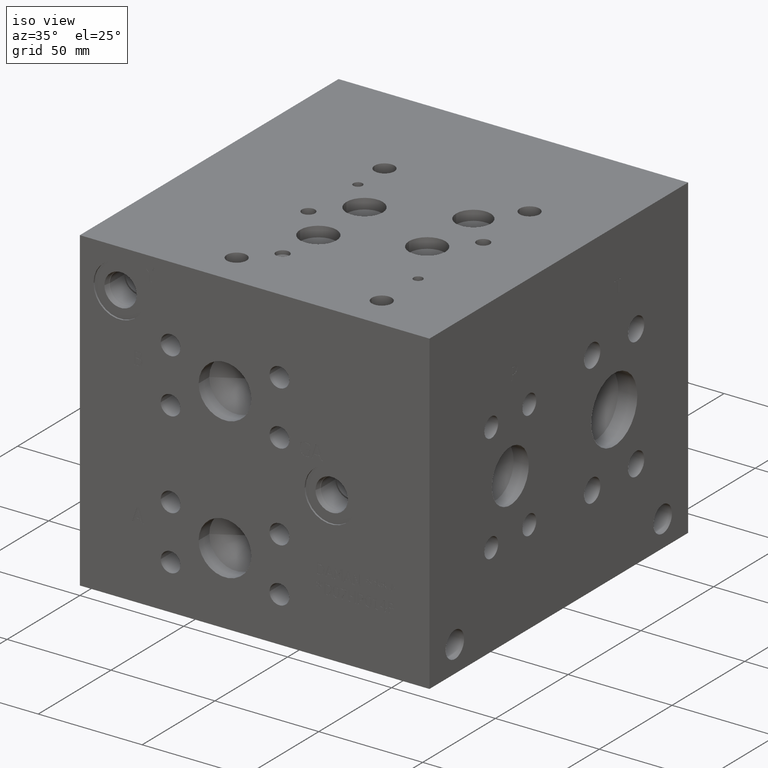
[diagram: clean part render]
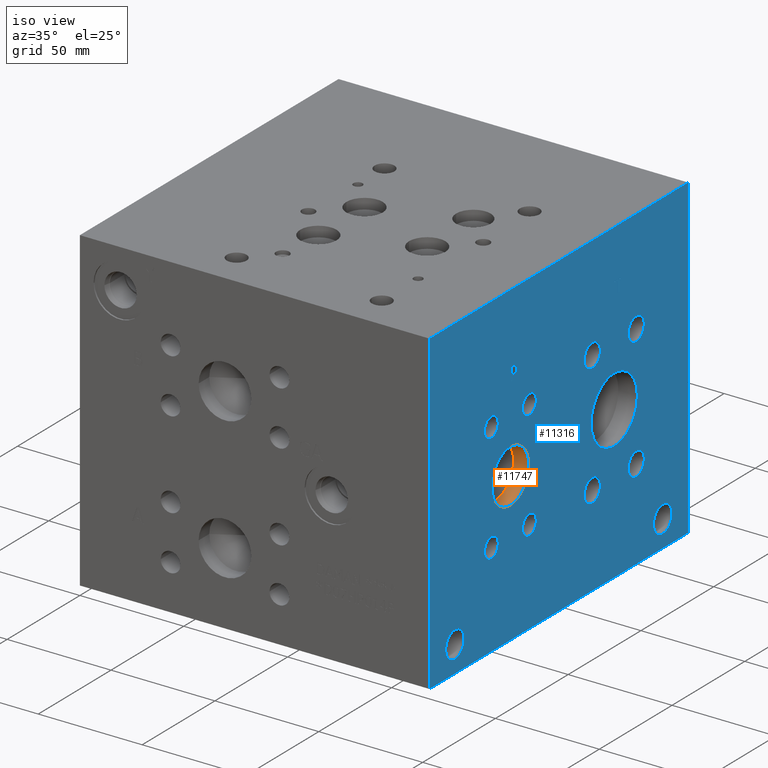
[diagram: same view with the hole feature highlighted: cylindrical wall and planar end face, labeled with their STEP entity ids]
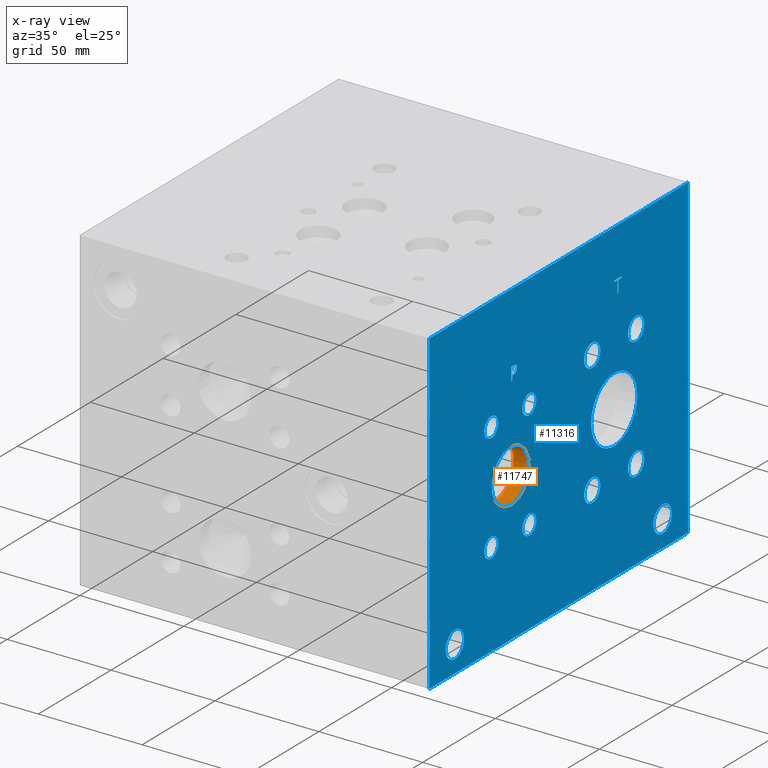
[diagram: x-ray of the same camera — body ghosted, the hole faces saturated]
A machine part, iso view. The highlighted faces form one hole feature of diameter 25.4 mm: the cylindrical wall (entity #11747, orange) and its adjacent planar end face (entity #11316, blue) — they share a circular edge in the B-rep.
The next image is the same camera in x-ray (body ghosted, the hole faces saturated) — the bore reads through the body.
Wall:
#26=CYLINDRICAL_SURFACE('',#12385,12.7);
#170=CIRCLE('',#11946,12.7);
#171=CIRCLE('',#11947,12.7);
#262=CIRCLE('',#12383,12.7);
#263=CIRCLE('',#12384,12.7);
#1439=FACE_OUTER_BOUND('',#2136,.T.);
#2136=EDGE_LOOP('',(#9999,#10000,#10001,#10002,#10003,#10004));
#3332=LINE('',#19403,#4447);
#4447=VECTOR('',#14682,12.7);
#4808=VERTEX_POINT('',#15818);
#4809=VERTEX_POINT('',#15819);
#5640=VERTEX_POINT('',#19396);
#5641=VERTEX_POINT('',#19397);
#5971=EDGE_CURVE('',#4808,#4809,#170,.T.);
#5972=EDGE_CURVE('',#4809,#4808,#171,.T.);
#7182=EDGE_CURVE('',#5640,#5641,#262,.T.);
#7184=EDGE_CURVE('',#5641,#5640,#263,.T.);
#7185=EDGE_CURVE('',#4809,#5641,#3332,.T.);
#9999=ORIENTED_EDGE('',*,*,#5971,.F.);
#10000=ORIENTED_EDGE('',*,*,#5972,.F.);
#10001=ORIENTED_EDGE('',*,*,#7185,.T.);
#10002=ORIENTED_EDGE('',*,*,#7182,.F.);
#10003=ORIENTED_EDGE('',*,*,#7184,.F.);
#10004=ORIENTED_EDGE('',*,*,#7185,.F.);
#11747=ADVANCED_FACE('',(#1439),#26,.F.);
#11946=AXIS2_PLACEMENT_3D('',#15820,#12852,#12853);
#11947=AXIS2_PLACEMENT_3D('',#15821,#12854,#12855);
#12383=AXIS2_PLACEMENT_3D('',#19398,#14675,#14676);
#12384=AXIS2_PLACEMENT_3D('',#19401,#14678,#14679);
#12385=AXIS2_PLACEMENT_3D('',#19402,#14680,#14681);
#12852=DIRECTION('center_axis',(-1.,0.,0.));
#12853=DIRECTION('ref_axis',(0.,1.,0.));
#12854=DIRECTION('center_axis',(-1.,0.,0.));
#12855=DIRECTION('ref_axis',(0.,1.,0.));
#14675=DIRECTION('center_axis',(1.,0.,0.));
#14676=DIRECTION('ref_axis',(0.,1.,0.));
#14678=DIRECTION('center_axis',(1.,0.,0.));
#14679=DIRECTION('ref_axis',(0.,1.,0.));
#14680=DIRECTION('center_axis',(1.,0.,0.));
#14681=DIRECTION('ref_axis',(0.,1.,0.));
#14682=DIRECTION('',(-1.,0.,0.));
#15818=CARTESIAN_POINT('',(168.275,68.2752,71.4248));
#15819=CARTESIAN_POINT('',(168.275,42.8752,71.4248));
#15820=CARTESIAN_POINT('Origin',(168.275,55.5752,71.4248));
#15821=CARTESIAN_POINT('Origin',(168.275,55.5752,71.4248));
#19396=CARTESIAN_POINT('',(160.94265,68.2752,71.4248));
#19397=CARTESIAN_POINT('',(160.94265,42.8752,71.4248));
#19398=CARTESIAN_POINT('Origin',(160.94265,55.5752,71.4248));
#19401=CARTESIAN_POINT('Origin',(160.94265,55.5752,71.4248));
#19402=CARTESIAN_POINT('Origin',(164.608825,55.5752,71.4248));
#19403=CARTESIAN_POINT('',(164.608825,42.8752,71.4248));
End face:
#160=CIRCLE('',#11936,15.875);
#161=CIRCLE('',#11937,15.875);
#162=CIRCLE('',#11938,5.5626);
#163=CIRCLE('',#11939,5.5626);
#164=CIRCLE('',#11940,5.5626);
#165=CIRCLE('',#11941,5.5626);
#166=CIRCLE('',#11942,5.5626);
#167=CIRCLE('',#11943,5.5626);
#168=CIRCLE('',#11944,5.5626);
#169=CIRCLE('',#11945,5.5626);
#170=CIRCLE('',#11946,12.7);
#171=CIRCLE('',#11947,12.7);
#172=CIRCLE('',#11948,4.7625);
#173=CIRCLE('',#11949,4.7625);
#174=CIRCLE('',#11950,4.7625);
#175=CIRCLE('',#11951,4.7625);
#176=CIRCLE('',#11952,4.7625);
#177=CIRCLE('',#11953,4.7625);
#178=CIRCLE('',#11954,4.7625);
#179=CIRCLE('',#11955,4.7625);
#180=CIRCLE('',#11956,6.35);
#181=CIRCLE('',#11957,6.35);
#182=CIRCLE('',#11958,6.35);
#183=CIRCLE('',#11959,6.35);
#489=FACE_BOUND('',#1623,.T.);
#490=FACE_BOUND('',#1624,.T.);
#491=FACE_BOUND('',#1625,.T.);
#492=FACE_BOUND('',#1626,.T.);
#493=FACE_BOUND('',#1627,.T.);
#494=FACE_BOUND('',#1628,.T.);
#495=FACE_BOUND('',#1629,.T.);
#496=FACE_BOUND('',#1630,.T.);
#497=FACE_BOUND('',#1631,.T.);
#498=FACE_BOUND('',#1632,.T.);
#499=FACE_BOUND('',#1633,.T.);
#500=FACE_BOUND('',#1634,.T.);
#501=FACE_BOUND('',#1635,.T.);
#502=FACE_BOUND('',#1636,.T.);
#626=PLANE('',#11935);
#1008=FACE_OUTER_BOUND('',#1622,.T.);
#1622=EDGE_LOOP('',(#7618,#7619,#7620,#7621));
#1623=EDGE_LOOP('',(#7622,#7623));
#1624=EDGE_LOOP('',(#7624,#7625));
#1625=EDGE_LOOP('',(#7626,#7627));
#1626=EDGE_LOOP('',(#7628,#7629));
#1627=EDGE_LOOP('',(#7630,#7631));
#1628=EDGE_LOOP('',(#7632,#7633));
#1629=EDGE_LOOP('',(#7634,#7635));
#1630=EDGE_LOOP('',(#7636,#7637));
#1631=EDGE_LOOP('',(#7638,#7639));
#1632=EDGE_LOOP('',(#7640,#7641));
#1633=EDGE_LOOP('',(#7642,#7643));
#1634=EDGE_LOOP('',(#7644,#7645));
#1635=EDGE_LOOP('',(#7646,#7647,#7648,#7649,#7650,#7651,#7652,#7653));
#1636=EDGE_LOOP('',(#7654,#7655,#7656,#7657,#7658,#7659,#7660,#7661,#7662));
#2362=LINE('',#15725,#3477);
#2365=LINE('',#15731,#3480);
#2368=LINE('',#15737,#3483);
#2371=LINE('',#15743,#3486);
#2374=LINE('',#15749,#3489);
#2378=LINE('',#15792,#3493);
#2379=LINE('',#15794,#3494);
#2380=LINE('',#15796,#3495);
#2381=LINE('',#15797,#3496);
#2382=LINE('',#15848,#3497);
#2383=LINE('',#15850,#3498);
#2384=LINE('',#15852,#3499);
#2385=LINE('',#15854,#3500);
#2386=LINE('',#15856,#3501);
#2387=LINE('',#15858,#3502);
#2388=LINE('',#15860,#3503);
#2389=LINE('',#15861,#3504);
#3477=VECTOR('',#12800,10.);
#3480=VECTOR('',#12805,10.);
#3483=VECTOR('',#12810,10.);
#3486=VECTOR('',#12815,10.);
#3489=VECTOR('',#12820,10.);
#3493=VECTOR('',#12828,10.);
#3494=VECTOR('',#12829,10.);
#3495=VECTOR('',#12830,10.);
#3496=VECTOR('',#12831,10.);
#3497=VECTOR('',#12880,10.);
#3498=VECTOR('',#12881,10.);
#3499=VECTOR('',#12882,10.);
#3500=VECTOR('',#12883,10.);
#3501=VECTOR('',#12884,10.);
#3502=VECTOR('',#12885,10.);
#3503=VECTOR('',#12886,10.);
#3504=VECTOR('',#12887,10.);
#4584=B_SPLINE_CURVE_WITH_KNOTS('',2,(#15692,#15693,#15694,#15695),
 .UNSPECIFIED.,.F.,.F.,(3,1,3),(0.,1.,2.),.UNSPECIFIED.);
#4586=B_SPLINE_CURVE_WITH_KNOTS('',2,(#15713,#15714,#15715,#15716),
 .UNSPECIFIED.,.F.,.F.,(3,1,3),(0.,1.,2.),.UNSPECIFIED.);
#4588=B_SPLINE_CURVE_WITH_KNOTS('',2,(#15762,#15763,#15764,#15765),
 .UNSPECIFIED.,.F.,.F.,(3,1,3),(0.,1.,2.),.UNSPECIFIED.);
#4590=B_SPLINE_CURVE_WITH_KNOTS('',2,(#15780,#15781,#15782,#15783),
 .UNSPECIFIED.,.F.,.F.,(3,1,3),(0.,1.,2.),.UNSPECIFIED.);
#4776=VERTEX_POINT('',#15690);
#4777=VERTEX_POINT('',#15691);
#4780=VERTEX_POINT('',#15712);
#4782=VERTEX_POINT('',#15724);
#4784=VERTEX_POINT('',#15730);
#4786=VERTEX_POINT('',#15736);
#4788=VERTEX_POINT('',#15742);
#4790=VERTEX_POINT('',#15748);
#4792=VERTEX_POINT('',#15761);
#4794=VERTEX_POINT('',#15790);
#4795=VERTEX_POINT('',#15791);
#4796=VERTEX_POINT('',#15793);
#4797=VERTEX_POINT('',#15795);
#4798=VERTEX_POINT('',#15798);
#4799=VERTEX_POINT('',#15799);
#4800=VERTEX_POINT('',#15802);
#4801=VERTEX_POINT('',#15803);
#4802=VERTEX_POINT('',#15806);
#4803=VERTEX_POINT('',#15807);
#4804=VERTEX_POINT('',#15810);
#4805=VERTEX_POINT('',#15811);
#4806=VERTEX_POINT('',#15814);
#4807=VERTEX_POINT('',#15815);
#4808=VERTEX_POINT('',#15818);
#4809=VERTEX_POINT('',#15819);
#4810=VERTEX_POINT('',#15822);
#4811=VERTEX_POINT('',#15823);
#4812=VERTEX_POINT('',#15826);
#4813=VERTEX_POINT('',#15827);
#4814=VERTEX_POINT('',#15830);
#4815=VERTEX_POINT('',#15831);
#4816=VERTEX_POINT('',#15834);
#4817=VERTEX_POINT('',#15835);
#4818=VERTEX_POINT('',#15838);
#4819=VERTEX_POINT('',#15839);
#4820=VERTEX_POINT('',#15842);
#4821=VERTEX_POINT('',#15843);
#4822=VERTEX_POINT('',#15846);
#4823=VERTEX_POINT('',#15847);
#4824=VERTEX_POINT('',#15849);
#4825=VERTEX_POINT('',#15851);
#4826=VERTEX_POINT('',#15853);
#4827=VERTEX_POINT('',#15855);
#4828=VERTEX_POINT('',#15857);
#4829=VERTEX_POINT('',#15859);
#5930=EDGE_CURVE('',#4776,#4777,#4584,.T.);
#5934=EDGE_CURVE('',#4780,#4776,#4586,.T.);
#5937=EDGE_CURVE('',#4782,#4780,#2362,.T.);
#5940=EDGE_CURVE('',#4784,#4782,#2365,.T.);
#5943=EDGE_CURVE('',#4786,#4784,#2368,.T.);
#5946=EDGE_CURVE('',#4788,#4786,#2371,.T.);
#5949=EDGE_CURVE('',#4790,#4788,#2374,.T.);
#5952=EDGE_CURVE('',#4792,#4790,#4588,.T.);
#5955=EDGE_CURVE('',#4777,#4792,#4590,.T.);
#5957=EDGE_CURVE('',#4794,#4795,#2378,.T.);
#5958=EDGE_CURVE('',#4795,#4796,#2379,.T.);
#5959=EDGE_CURVE('',#4797,#4796,#2380,.T.);
#5960=EDGE_CURVE('',#4794,#4797,#2381,.T.);
#5961=EDGE_CURVE('',#4798,#4799,#160,.T.);
#5962=EDGE_CURVE('',#4799,#4798,#161,.T.);
#5963=EDGE_CURVE('',#4800,#4801,#162,.T.);
#5964=EDGE_CURVE('',#4801,#4800,#163,.T.);
#5965=EDGE_CURVE('',#4802,#4803,#164,.T.);
#5966=EDGE_CURVE('',#4803,#4802,#165,.T.);
#5967=EDGE_CURVE('',#4804,#4805,#166,.T.);
#5968=EDGE_CURVE('',#4805,#4804,#167,.T.);
#5969=EDGE_CURVE('',#4806,#4807,#168,.T.);
#5970=EDGE_CURVE('',#4807,#4806,#169,.T.);
#5971=EDGE_CURVE('',#4808,#4809,#170,.T.);
#5972=EDGE_CURVE('',#4809,#4808,#171,.T.);
#5973=EDGE_CURVE('',#4810,#4811,#172,.T.);
#5974=EDGE_CURVE('',#4811,#4810,#173,.T.);
#5975=EDGE_CURVE('',#4812,#4813,#174,.T.);
#5976=EDGE_CURVE('',#4813,#4812,#175,.T.);
#5977=EDGE_CURVE('',#4814,#4815,#176,.T.);
#5978=EDGE_CURVE('',#4815,#4814,#177,.T.);
#5979=EDGE_CURVE('',#4816,#4817,#178,.T.);
#5980=EDGE_CURVE('',#4817,#4816,#179,.T.);
#5981=EDGE_CURVE('',#4818,#4819,#180,.T.);
#5982=EDGE_CURVE('',#4819,#4818,#181,.T.);
#5983=EDGE_CURVE('',#4820,#4821,#182,.T.);
#5984=EDGE_CURVE('',#4821,#4820,#183,.T.);
#5985=EDGE_CURVE('',#4822,#4823,#2382,.T.);
#5986=EDGE_CURVE('',#4823,#4824,#2383,.T.);
#5987=EDGE_CURVE('',#4824,#4825,#2384,.T.);
#5988=EDGE_CURVE('',#4825,#4826,#2385,.T.);
#5989=EDGE_CURVE('',#4826,#4827,#2386,.T.);
#5990=EDGE_CURVE('',#4827,#4828,#2387,.T.);
#5991=EDGE_CURVE('',#4828,#4829,#2388,.T.);
#5992=EDGE_CURVE('',#4829,#4822,#2389,.T.);
#7618=ORIENTED_EDGE('',*,*,#5957,.T.);
#7619=ORIENTED_EDGE('',*,*,#5958,.T.);
#7620=ORIENTED_EDGE('',*,*,#5959,.F.);
#7621=ORIENTED_EDGE('',*,*,#5960,.F.);
#7622=ORIENTED_EDGE('',*,*,#5961,.T.);
#7623=ORIENTED_EDGE('',*,*,#5962,.T.);
#7624=ORIENTED_EDGE('',*,*,#5963,.T.);
#7625=ORIENTED_EDGE('',*,*,#5964,.T.);
#7626=ORIENTED_EDGE('',*,*,#5965,.T.);
#7627=ORIENTED_EDGE('',*,*,#5966,.T.);
#7628=ORIENTED_EDGE('',*,*,#5967,.T.);
#7629=ORIENTED_EDGE('',*,*,#5968,.T.);
#7630=ORIENTED_EDGE('',*,*,#5969,.T.);
#7631=ORIENTED_EDGE('',*,*,#5970,.T.);
#7632=ORIENTED_EDGE('',*,*,#5971,.T.);
#7633=ORIENTED_EDGE('',*,*,#5972,.T.);
#7634=ORIENTED_EDGE('',*,*,#5973,.T.);
#7635=ORIENTED_EDGE('',*,*,#5974,.T.);
#7636=ORIENTED_EDGE('',*,*,#5975,.T.);
#7637=ORIENTED_EDGE('',*,*,#5976,.T.);
#7638=ORIENTED_EDGE('',*,*,#5977,.T.);
#7639=ORIENTED_EDGE('',*,*,#5978,.T.);
#7640=ORIENTED_EDGE('',*,*,#5979,.T.);
#7641=ORIENTED_EDGE('',*,*,#5980,.T.);
#7642=ORIENTED_EDGE('',*,*,#5981,.T.);
#7643=ORIENTED_EDGE('',*,*,#5982,.T.);
#7644=ORIENTED_EDGE('',*,*,#5983,.T.);
#7645=ORIENTED_EDGE('',*,*,#5984,.T.);
#7646=ORIENTED_EDGE('',*,*,#5985,.T.);
#7647=ORIENTED_EDGE('',*,*,#5986,.T.);
#7648=ORIENTED_EDGE('',*,*,#5987,.T.);
#7649=ORIENTED_EDGE('',*,*,#5988,.T.);
#7650=ORIENTED_EDGE('',*,*,#5989,.T.);
#7651=ORIENTED_EDGE('',*,*,#5990,.T.);
#7652=ORIENTED_EDGE('',*,*,#5991,.T.);
#7653=ORIENTED_EDGE('',*,*,#5992,.T.);
#7654=ORIENTED_EDGE('',*,*,#5930,.T.);
#7655=ORIENTED_EDGE('',*,*,#5955,.T.);
#7656=ORIENTED_EDGE('',*,*,#5952,.T.);
#7657=ORIENTED_EDGE('',*,*,#5949,.T.);
#7658=ORIENTED_EDGE('',*,*,#5946,.T.);
#7659=ORIENTED_EDGE('',*,*,#5943,.T.);
#7660=ORIENTED_EDGE('',*,*,#5940,.T.);
#7661=ORIENTED_EDGE('',*,*,#5937,.T.);
#7662=ORIENTED_EDGE('',*,*,#5934,.T.);
#11316=ADVANCED_FACE('',(#1008,#489,#490,#491,#492,#493,#494,#495,#496,
#497,#498,#499,#500,#501,#502),#626,.T.);
#11935=AXIS2_PLACEMENT_3D('',#15789,#12826,#12827);
#11936=AXIS2_PLACEMENT_3D('',#15800,#12832,#12833);
#11937=AXIS2_PLACEMENT_3D('',#15801,#12834,#12835);
#11938=AXIS2_PLACEMENT_3D('',#15804,#12836,#12837);
#11939=AXIS2_PLACEMENT_3D('',#15805,#12838,#12839);
#11940=AXIS2_PLACEMENT_3D('',#15808,#12840,#12841);
#11941=AXIS2_PLACEMENT_3D('',#15809,#12842,#12843);
#11942=AXIS2_PLACEMENT_3D('',#15812,#12844,#12845);
#11943=AXIS2_PLACEMENT_3D('',#15813,#12846,#12847);
#11944=AXIS2_PLACEMENT_3D('',#15816,#12848,#12849);
#11945=AXIS2_PLACEMENT_3D('',#15817,#12850,#12851);
#11946=AXIS2_PLACEMENT_3D('',#15820,#12852,#12853);
#11947=AXIS2_PLACEMENT_3D('',#15821,#12854,#12855);
#11948=AXIS2_PLACEMENT_3D('',#15824,#12856,#12857);
#11949=AXIS2_PLACEMENT_3D('',#15825,#12858,#12859);
#11950=AXIS2_PLACEMENT_3D('',#15828,#12860,#12861);
#11951=AXIS2_PLACEMENT_3D('',#15829,#12862,#12863);
#11952=AXIS2_PLACEMENT_3D('',#15832,#12864,#12865);
#11953=AXIS2_PLACEMENT_3D('',#15833,#12866,#12867);
#11954=AXIS2_PLACEMENT_3D('',#15836,#12868,#12869);
#11955=AXIS2_PLACEMENT_3D('',#15837,#12870,#12871);
#11956=AXIS2_PLACEMENT_3D('',#15840,#12872,#12873);
#11957=AXIS2_PLACEMENT_3D('',#15841,#12874,#12875);
#11958=AXIS2_PLACEMENT_3D('',#15844,#12876,#12877);
#11959=AXIS2_PLACEMENT_3D('',#15845,#12878,#12879);
#12800=DIRECTION('',(0.,1.,0.));
#12805=DIRECTION('',(0.,0.,1.));
#12810=DIRECTION('',(0.,-1.,0.));
#12815=DIRECTION('',(0.,0.,-1.));
#12820=DIRECTION('',(0.,-1.,0.));
#12826=DIRECTION('center_axis',(1.,0.,0.));
#12827=DIRECTION('ref_axis',(0.,1.,0.));
#12828=DIRECTION('',(0.,1.,0.));
#12829=DIRECTION('',(0.,0.,1.));
#12830=DIRECTION('',(0.,1.,0.));
#12831=DIRECTION('',(0.,0.,1.));
#12832=DIRECTION('center_axis',(-1.,0.,0.));
#12833=DIRECTION('ref_axis',(0.,1.,0.));
#12834=DIRECTION('center_axis',(-1.,0.,0.));
#12835=DIRECTION('ref_axis',(0.,1.,0.));
#12836=DIRECTION('center_axis',(-1.,0.,0.));
#12837=DIRECTION('ref_axis',(0.,1.,0.));
#12838=DIRECTION('center_axis',(-1.,0.,0.));
#12839=DIRECTION('ref_axis',(0.,1.,0.));
#12840=DIRECTION('center_axis',(-1.,0.,0.));
#12841=DIRECTION('ref_axis',(0.,1.,0.));
#12842=DIRECTION('center_axis',(-1.,0.,0.));
#12843=DIRECTION('ref_axis',(0.,1.,0.));
#12844=DIRECTION('center_axis',(-1.,0.,0.));
#12845=DIRECTION('ref_axis',(0.,1.,0.));
#12846=DIRECTION('center_axis',(-1.,0.,0.));
#12847=DIRECTION('ref_axis',(0.,1.,0.));
#12848=DIRECTION('center_axis',(-1.,0.,0.));
#12849=DIRECTION('ref_axis',(0.,1.,0.));
#12850=DIRECTION('center_axis',(-1.,0.,0.));
#12851=DIRECTION('ref_axis',(0.,1.,0.));
#12852=DIRECTION('center_axis',(-1.,0.,0.));
#12853=DIRECTION('ref_axis',(0.,1.,0.));
#12854=DIRECTION('center_axis',(-1.,0.,0.));
#12855=DIRECTION('ref_axis',(0.,1.,0.));
#12856=DIRECTION('center_axis',(-1.,0.,0.));
#12857=DIRECTION('ref_axis',(0.,1.,0.));
#12858=DIRECTION('center_axis',(-1.,0.,0.));
#12859=DIRECTION('ref_axis',(0.,1.,0.));
#12860=DIRECTION('center_axis',(-1.,0.,0.));
#12861=DIRECTION('ref_axis',(0.,1.,0.));
#12862=DIRECTION('center_axis',(-1.,0.,0.));
#12863=DIRECTION('ref_axis',(0.,1.,0.));
#12864=DIRECTION('center_axis',(-1.,0.,0.));
#12865=DIRECTION('ref_axis',(0.,1.,0.));
#12866=DIRECTION('center_axis',(-1.,0.,0.));
#12867=DIRECTION('ref_axis',(0.,1.,0.));
#12868=DIRECTION('center_axis',(-1.,0.,0.));
#12869=DIRECTION('ref_axis',(0.,1.,0.));
#12870=DIRECTION('center_axis',(-1.,0.,0.));
#12871=DIRECTION('ref_axis',(0.,1.,0.));
#12872=DIRECTION('center_axis',(-1.,0.,0.));
#12873=DIRECTION('ref_axis',(0.,1.,0.));
#12874=DIRECTION('center_axis',(-1.,0.,0.));
#12875=DIRECTION('ref_axis',(0.,1.,0.));
#12876=DIRECTION('center_axis',(-1.,0.,0.));
#12877=DIRECTION('ref_axis',(0.,1.,0.));
#12878=DIRECTION('center_axis',(-1.,0.,0.));
#12879=DIRECTION('ref_axis',(0.,1.,0.));
#12880=DIRECTION('',(0.,-1.,0.));
#12881=DIRECTION('',(0.,0.,1.));
#12882=DIRECTION('',(0.,-1.,0.));
#12883=DIRECTION('',(0.,0.,1.));
#12884=DIRECTION('',(0.,1.,0.));
#12885=DIRECTION('',(0.,0.,-1.));
#12886=DIRECTION('',(0.,-1.,0.));
#12887=DIRECTION('',(0.,0.,-1.));
#15690=CARTESIAN_POINT('',(168.275,59.4757672023594,118.323368143971));
#15691=CARTESIAN_POINT('',(168.275,60.232209654532,116.805337372604));
#15692=CARTESIAN_POINT('Ctrl Pts',(168.275,59.4757672023594,118.323368143971));
#15693=CARTESIAN_POINT('Ctrl Pts',(168.275,59.8308320268486,118.081512393956));
#15694=CARTESIAN_POINT('Ctrl Pts',(168.275,60.232209654532,117.335361675827));
#15695=CARTESIAN_POINT('Ctrl Pts',(168.275,60.232209654532,116.805337372604));
#15712=CARTESIAN_POINT('',(168.275,57.8136521543883,118.719599904633));
#15713=CARTESIAN_POINT('Ctrl Pts',(168.275,57.8136521543883,118.719599904633));
#15714=CARTESIAN_POINT('Ctrl Pts',(168.275,58.3796975267624,118.719599904633));
#15715=CARTESIAN_POINT('Ctrl Pts',(168.275,59.172161048086,118.534348691856));
#15716=CARTESIAN_POINT('Ctrl Pts',(168.275,59.4757672023594,118.323368143971));
#15724=CARTESIAN_POINT('',(168.275,56.2184333776978,118.719599904633));
#15725=CARTESIAN_POINT('',(168.275,28.1092166888489,118.719599904633));
#15730=CARTESIAN_POINT('',(168.275,56.2184333776978,112.3696));
#15731=CARTESIAN_POINT('',(168.275,56.2184333776978,56.1848));
#15736=CARTESIAN_POINT('',(168.275,57.0623555692373,112.3696));
#15737=CARTESIAN_POINT('',(168.275,28.5311777846186,112.3696));
#15742=CARTESIAN_POINT('',(168.275,57.0623555692373,114.736698829928));
#15743=CARTESIAN_POINT('',(168.275,57.0623555692373,57.3683494149639));
#15748=CARTESIAN_POINT('',(168.275,57.7776310852372,114.736698829928));
#15749=CARTESIAN_POINT('',(168.275,28.8888155426186,114.736698829928));
#15761=CARTESIAN_POINT('',(168.275,59.6764560162011,115.39536980869));
#15762=CARTESIAN_POINT('Ctrl Pts',(168.275,59.6764560162011,115.39536980869));
#15763=CARTESIAN_POINT('Ctrl Pts',(168.275,59.3471205268198,115.071180186331));
#15764=CARTESIAN_POINT('Ctrl Pts',(168.275,58.4568855320861,114.736698829928));
#15765=CARTESIAN_POINT('Ctrl Pts',(168.275,57.7776310852372,114.736698829928));
#15780=CARTESIAN_POINT('Ctrl Pts',(168.275,60.232209654532,116.805337372604));
#15781=CARTESIAN_POINT('Ctrl Pts',(168.275,60.232209654532,116.393668010877));
#15782=CARTESIAN_POINT('Ctrl Pts',(168.275,59.9388952343018,115.65266315977));
#15783=CARTESIAN_POINT('Ctrl Pts',(168.275,59.6764560162011,115.39536980869));
#15789=CARTESIAN_POINT('Origin',(168.275,0.,0.));
#15790=CARTESIAN_POINT('',(168.275,0.,0.));
#15791=CARTESIAN_POINT('',(168.275,177.8,0.));
#15792=CARTESIAN_POINT('',(168.275,0.,0.));
#15793=CARTESIAN_POINT('',(168.275,177.8,152.4));
#15794=CARTESIAN_POINT('',(168.275,177.8,0.));
#15795=CARTESIAN_POINT('',(168.275,0.,152.4));
#15796=CARTESIAN_POINT('',(168.275,0.,152.4));
#15797=CARTESIAN_POINT('',(168.275,0.,0.));
#15798=CARTESIAN_POINT('',(168.275,142.875,73.025));
#15799=CARTESIAN_POINT('',(168.275,111.125,73.025));
#15800=CARTESIAN_POINT('Origin',(168.275,127.,73.025));
#15801=CARTESIAN_POINT('Origin',(168.275,127.,73.025));
#15802=CARTESIAN_POINT('',(168.275,147.6502,102.3874));
#15803=CARTESIAN_POINT('',(168.275,136.525,102.3874));
#15804=CARTESIAN_POINT('Origin',(168.275,142.0876,102.3874));
#15805=CARTESIAN_POINT('Origin',(168.275,142.0876,102.3874));
#15806=CARTESIAN_POINT('',(168.275,117.475,43.6626));
#15807=CARTESIAN_POINT('',(168.275,106.3498,43.6626));
#15808=CARTESIAN_POINT('Origin',(168.275,111.9124,43.6626));
#15809=CARTESIAN_POINT('Origin',(168.275,111.9124,43.6626));
#15810=CARTESIAN_POINT('',(168.275,147.6502,43.6626));
#15811=CARTESIAN_POINT('',(168.275,136.525,43.6626));
#15812=CARTESIAN_POINT('Origin',(168.275,142.0876,43.6626));
#15813=CARTESIAN_POINT('Origin',(168.275,142.0876,43.6626));
#15814=CARTESIAN_POINT('',(168.275,117.475,102.3874));
#15815=CARTESIAN_POINT('',(168.275,106.3498,102.3874));
#15816=CARTESIAN_POINT('Origin',(168.275,111.9124,102.3874));
#15817=CARTESIAN_POINT('Origin',(168.275,111.9124,102.3874));
#15818=CARTESIAN_POINT('',(168.275,68.2752,71.4248));
#15819=CARTESIAN_POINT('',(168.275,42.8752,71.4248));
#15820=CARTESIAN_POINT('Origin',(168.275,55.5752,71.4248));
#15821=CARTESIAN_POINT('Origin',(168.275,55.5752,71.4248));
#15822=CARTESIAN_POINT('',(168.275,73.4187,97.6122));
#15823=CARTESIAN_POINT('',(168.275,63.8937,97.6122));
#15824=CARTESIAN_POINT('Origin',(168.275,68.6562,97.6122));
#15825=CARTESIAN_POINT('Origin',(168.275,68.6562,97.6122));
#15826=CARTESIAN_POINT('',(168.275,47.2567,45.2374));
#15827=CARTESIAN_POINT('',(168.275,37.7317,45.2374));
#15828=CARTESIAN_POINT('Origin',(168.275,42.4942,45.2374));
#15829=CARTESIAN_POINT('Origin',(168.275,42.4942,45.2374));
#15830=CARTESIAN_POINT('',(168.275,73.4187,45.2374));
#15831=CARTESIAN_POINT('',(168.275,63.8937,45.2374));
#15832=CARTESIAN_POINT('Origin',(168.275,68.6562,45.2374));
#15833=CARTESIAN_POINT('Origin',(168.275,68.6562,45.2374));
#15834=CARTESIAN_POINT('',(168.275,47.2567,97.6122));
#15835=CARTESIAN_POINT('',(168.275,37.7317,97.6122));
#15836=CARTESIAN_POINT('Origin',(168.275,42.4942,97.6122));
#15837=CARTESIAN_POINT('Origin',(168.275,42.4942,97.6122));
#15838=CARTESIAN_POINT('',(168.275,166.6748,12.7));
#15839=CARTESIAN_POINT('',(168.275,153.9748,12.7));
#15840=CARTESIAN_POINT('Origin',(168.275,160.3248,12.7));
#15841=CARTESIAN_POINT('Origin',(168.275,160.3248,12.7));
#15842=CARTESIAN_POINT('',(168.275,23.8252,12.7));
#15843=CARTESIAN_POINT('',(168.275,11.1252,12.7));
#15844=CARTESIAN_POINT('Origin',(168.275,17.4752,12.7));
#15845=CARTESIAN_POINT('Origin',(168.275,17.4752,12.7));
#15846=CARTESIAN_POINT('',(168.275,129.969165271453,122.809));
#15847=CARTESIAN_POINT('',(168.275,129.125243079914,122.809));
#15848=CARTESIAN_POINT('',(168.275,64.9845826357265,122.809));
#15849=CARTESIAN_POINT('',(168.275,129.125243079914,128.407703319482));
#15850=CARTESIAN_POINT('',(168.275,129.125243079914,61.4045));
#15851=CARTESIAN_POINT('',(168.275,126.994854132978,128.407703319482));
#15852=CARTESIAN_POINT('',(168.275,64.5626215399568,128.407703319482));
#15853=CARTESIAN_POINT('',(168.275,126.994854132978,129.158999904633));
#15854=CARTESIAN_POINT('',(168.275,126.994854132978,64.2038516597408));
#15855=CARTESIAN_POINT('',(168.275,132.099554218388,129.158999904633));
#15856=CARTESIAN_POINT('',(168.275,63.4974270664892,129.158999904633));
#15857=CARTESIAN_POINT('',(168.275,132.099554218388,128.407703319482));
#15858=CARTESIAN_POINT('',(168.275,132.099554218388,64.5794999523163));
#15859=CARTESIAN_POINT('',(168.275,129.969165271453,128.407703319482));
#15860=CARTESIAN_POINT('',(168.275,66.049777109194,128.407703319482));
#15861=CARTESIAN_POINT('',(168.275,129.969165271453,64.2038516597408));